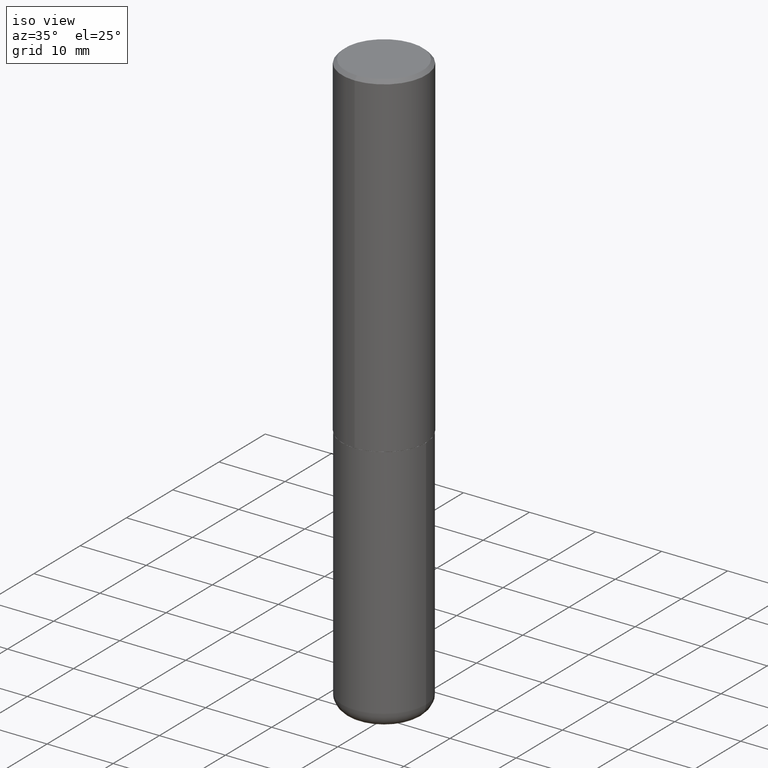
[diagram: clean part render]
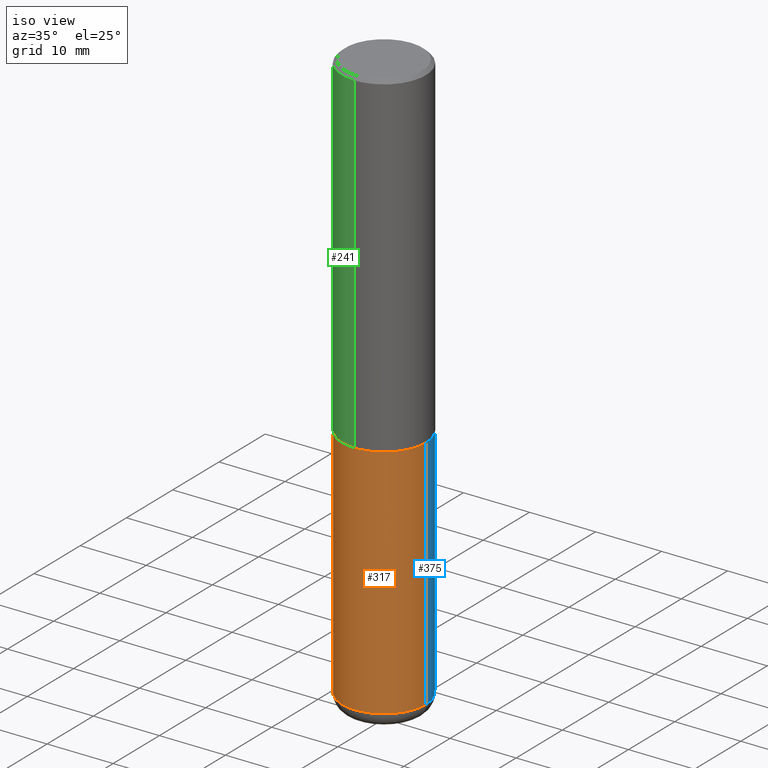
[diagram: same view with three faces highlighted in distinct colors, each labeled with its STEP entity id]
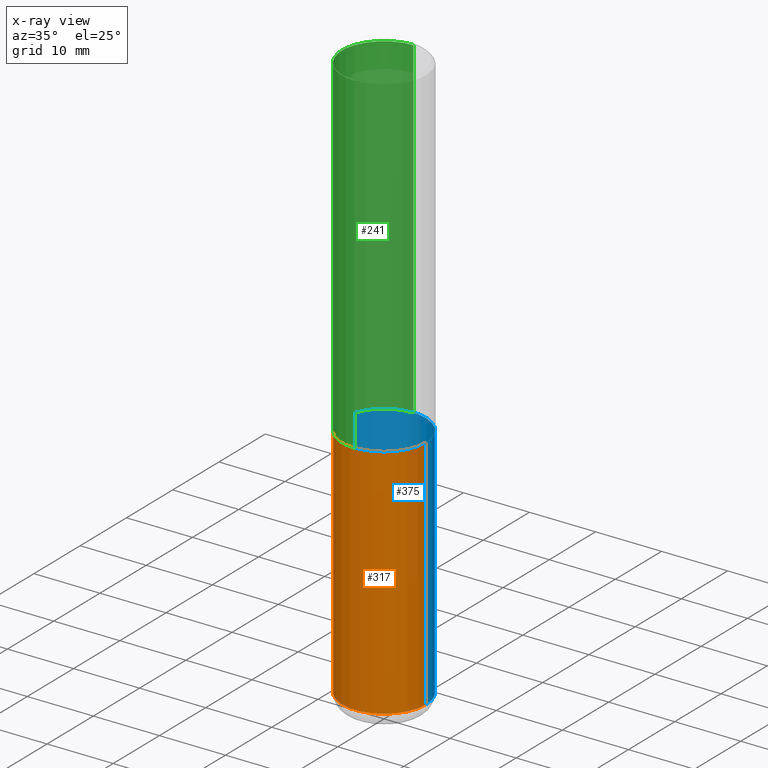
[diagram: x-ray of the same camera — body ghosted, the three highlighted faces saturated]
A machine part, iso view with three faces highlighted in distinct colors.
The next image is the same camera in x-ray (body ghosted, the three faces saturated) — at least one of them is partly hidden behind the body in this view.
Their STEP definitions:

[orange] entity #317 — the highlighted cylindrical surface (partial cylindrical patch) has radius 6.35 mm, axis along (-0, 0, 1).
#36 = CIRCLE ( 'NONE', #304, 0.2500000000000000000 ) ;
#52 = VERTEX_POINT ( 'NONE', #122 ) ;
#53 = VERTEX_POINT ( 'NONE', #409 ) ;
#66 = VERTEX_POINT ( 'NONE', #283 ) ;
#75 = CARTESIAN_POINT ( 'NONE',  ( -0.2500000000000000000, -7.668100182170457762E-15, -1.999999999999999778 ) ) ;
#83 = CIRCLE ( 'NONE', #255, 0.2500000000000000555 ) ;
#87 = CARTESIAN_POINT ( 'NONE',  ( 0.000000000000000000, 0.000000000000000000, 0.000000000000000000 ) ) ;
#99 = VERTEX_POINT ( 'NONE', #75 ) ;
#109 = CARTESIAN_POINT ( 'NONE',  ( 8.339048629091315302E-29, -1.190595136545512608E-14, -3.410000000000000142 ) ) ;
#122 = CARTESIAN_POINT ( 'NONE',  ( 0.2500000000000000000, -8.728703347107857054E-15, -1.999999999999999778 ) ) ;
#137 = LINE ( 'NONE', #270, #217 ) ;
#145 = DIRECTION ( 'NONE',  ( -2.445468806185136597E-29, 3.491481338843145583E-15, 1.000000000000000000 ) ) ;
#164 = DIRECTION ( 'NONE',  ( 1.000000000000000000, -6.982962677686269077E-15, 0.000000000000000000 ) ) ;
#181 = EDGE_CURVE ( 'NONE', #66, #52, #296, .T. ) ;
#196 = DIRECTION ( 'NONE',  ( -2.445468806185136597E-29, 3.491481338843145583E-15, 1.000000000000000000 ) ) ;
#201 = AXIS2_PLACEMENT_3D ( 'NONE', #87, #411, #381 ) ;
#207 = CARTESIAN_POINT ( 'NONE',  ( 4.890937612370272633E-29, -6.982962677686290376E-15, -1.999999999999999778 ) ) ;
#217 = VECTOR ( 'NONE', #303, 39.37007874015748143 ) ;
#255 = AXIS2_PLACEMENT_3D ( 'NONE', #109, #196, #164 ) ;
#257 = EDGE_CURVE ( 'NONE', #53, #66, #83, .T. ) ;
#268 = CARTESIAN_POINT ( 'NONE',  ( 0.2500000000000000000, -1.745740669421566678E-15, 1.219044193948983948E-29 ) ) ;
#270 = CARTESIAN_POINT ( 'NONE',  ( -0.2500000000000000000, 1.776356839400250465E-15, -1.229733772563726445E-29 ) ) ;
#273 = EDGE_CURVE ( 'NONE', #53, #99, #137, .T. ) ;
#283 = CARTESIAN_POINT ( 'NONE',  ( 0.2499999999999998612, -1.365169203487669276E-14, -3.410000000000000142 ) ) ;
#292 = EDGE_CURVE ( 'NONE', #99, #52, #36, .T. ) ;
#296 = LINE ( 'NONE', #268, #374 ) ;
#303 = DIRECTION ( 'NONE',  ( -2.445468806185136877E-29, 3.491481338843145188E-15, 1.000000000000000000 ) ) ;
#304 = AXIS2_PLACEMENT_3D ( 'NONE', #207, #145, #306 ) ;
#305 = ORIENTED_EDGE ( 'NONE', *, *, #292, .F. ) ;
#306 = DIRECTION ( 'NONE',  ( 1.000000000000000000, -6.982962677686266711E-15, 0.000000000000000000 ) ) ;
#311 = FACE_OUTER_BOUND ( 'NONE', #372, .T. ) ;
#317 = ADVANCED_FACE ( 'NONE', ( #311 ), #376, .T. ) ;
#361 = ORIENTED_EDGE ( 'NONE', *, *, #181, .T. ) ;
#372 = EDGE_LOOP ( 'NONE', ( #407, #404, #361, #305 ) ) ;
#374 = VECTOR ( 'NONE', #399, 39.37007874015748143 ) ;
#376 = CYLINDRICAL_SURFACE ( 'NONE', #201, 0.2500000000000000000 ) ;
#381 = DIRECTION ( 'NONE',  ( 1.000000000000000000, -6.982962677686266711E-15, 4.876176775795935793E-29 ) ) ;
#399 = DIRECTION ( 'NONE',  ( -2.445468806185136877E-29, 3.491481338843145188E-15, 1.000000000000000000 ) ) ;
#404 = ORIENTED_EDGE ( 'NONE', *, *, #257, .T. ) ;
#407 = ORIENTED_EDGE ( 'NONE', *, *, #273, .F. ) ;
#409 = CARTESIAN_POINT ( 'NONE',  ( -0.2499999999999998612, -1.012959452605487719E-14, -3.410000000000000142 ) ) ;
#411 = DIRECTION ( 'NONE',  ( -2.445468806185136597E-29, 3.491481338843145583E-15, 1.000000000000000000 ) ) ;

[blue] entity #375 — the highlighted cylindrical surface (partial cylindrical patch) has radius 6.35 mm, axis along (-0, 0, 1).
#16 = ORIENTED_EDGE ( 'NONE', *, *, #253, .T. ) ;
#52 = VERTEX_POINT ( 'NONE', #122 ) ;
#53 = VERTEX_POINT ( 'NONE', #409 ) ;
#62 = ORIENTED_EDGE ( 'NONE', *, *, #155, .F. ) ;
#66 = VERTEX_POINT ( 'NONE', #283 ) ;
#75 = CARTESIAN_POINT ( 'NONE',  ( -0.2500000000000000000, -7.668100182170457762E-15, -1.999999999999999778 ) ) ;
#92 = CARTESIAN_POINT ( 'NONE',  ( 8.339048629091315302E-29, -1.190595136545512608E-14, -3.410000000000000142 ) ) ;
#99 = VERTEX_POINT ( 'NONE', #75 ) ;
#122 = CARTESIAN_POINT ( 'NONE',  ( 0.2500000000000000000, -8.728703347107857054E-15, -1.999999999999999778 ) ) ;
#123 = CYLINDRICAL_SURFACE ( 'NONE', #256, 0.2500000000000000000 ) ;
#125 = DIRECTION ( 'NONE',  ( 1.000000000000000000, -6.982962677686266711E-15, 4.876176775795935793E-29 ) ) ;
#137 = LINE ( 'NONE', #270, #217 ) ;
#155 = EDGE_CURVE ( 'NONE', #52, #99, #242, .T. ) ;
#159 = DIRECTION ( 'NONE',  ( -2.445468806185136597E-29, 3.491481338843145583E-15, 1.000000000000000000 ) ) ;
#181 = EDGE_CURVE ( 'NONE', #66, #52, #296, .T. ) ;
#186 = DIRECTION ( 'NONE',  ( -2.445468806185136597E-29, 3.491481338843145583E-15, 1.000000000000000000 ) ) ;
#202 = AXIS2_PLACEMENT_3D ( 'NONE', #235, #186, #363 ) ;
#217 = VECTOR ( 'NONE', #303, 39.37007874015748143 ) ;
#218 = DIRECTION ( 'NONE',  ( -2.445468806185136597E-29, 3.491481338843145583E-15, 1.000000000000000000 ) ) ;
#229 = FACE_OUTER_BOUND ( 'NONE', #310, .T. ) ;
#235 = CARTESIAN_POINT ( 'NONE',  ( 4.890937612370272633E-29, -6.982962677686290376E-15, -1.999999999999999778 ) ) ;
#242 = CIRCLE ( 'NONE', #202, 0.2500000000000000000 ) ;
#246 = ORIENTED_EDGE ( 'NONE', *, *, #181, .F. ) ;
#247 = ORIENTED_EDGE ( 'NONE', *, *, #273, .T. ) ;
#253 = EDGE_CURVE ( 'NONE', #66, #53, #318, .T. ) ;
#256 = AXIS2_PLACEMENT_3D ( 'NONE', #387, #159, #125 ) ;
#268 = CARTESIAN_POINT ( 'NONE',  ( 0.2500000000000000000, -1.745740669421566678E-15, 1.219044193948983948E-29 ) ) ;
#270 = CARTESIAN_POINT ( 'NONE',  ( -0.2500000000000000000, 1.776356839400250465E-15, -1.229733772563726445E-29 ) ) ;
#273 = EDGE_CURVE ( 'NONE', #53, #99, #137, .T. ) ;
#283 = CARTESIAN_POINT ( 'NONE',  ( 0.2499999999999998612, -1.365169203487669276E-14, -3.410000000000000142 ) ) ;
#296 = LINE ( 'NONE', #268, #374 ) ;
#303 = DIRECTION ( 'NONE',  ( -2.445468806185136877E-29, 3.491481338843145188E-15, 1.000000000000000000 ) ) ;
#310 = EDGE_LOOP ( 'NONE', ( #16, #247, #62, #246 ) ) ;
#318 = CIRCLE ( 'NONE', #355, 0.2500000000000000555 ) ;
#350 = DIRECTION ( 'NONE',  ( 1.000000000000000000, -6.982962677686269077E-15, 0.000000000000000000 ) ) ;
#355 = AXIS2_PLACEMENT_3D ( 'NONE', #92, #218, #350 ) ;
#363 = DIRECTION ( 'NONE',  ( 1.000000000000000000, -6.982962677686266711E-15, 0.000000000000000000 ) ) ;
#374 = VECTOR ( 'NONE', #399, 39.37007874015748143 ) ;
#375 = ADVANCED_FACE ( 'NONE', ( #229 ), #123, .T. ) ;
#387 = CARTESIAN_POINT ( 'NONE',  ( 0.000000000000000000, 0.000000000000000000, 0.000000000000000000 ) ) ;
#399 = DIRECTION ( 'NONE',  ( -2.445468806185136877E-29, 3.491481338843145188E-15, 1.000000000000000000 ) ) ;
#409 = CARTESIAN_POINT ( 'NONE',  ( -0.2499999999999998612, -1.012959452605487719E-14, -3.410000000000000142 ) ) ;

[green] entity #241 — the highlighted cylindrical surface (partial cylindrical patch) has radius 6.35 mm, axis along (-0, 0, 1).
#3 = EDGE_CURVE ( 'NONE', #413, #86, #209, .T. ) ;
#14 = ORIENTED_EDGE ( 'NONE', *, *, #88, .T. ) ;
#22 = CYLINDRICAL_SURFACE ( 'NONE', #278, 0.2500000000000001110 ) ;
#24 = CARTESIAN_POINT ( 'NONE',  ( 0.000000000000000000, 0.000000000000000000, 0.000000000000000000 ) ) ;
#30 = DIRECTION ( 'NONE',  ( -2.445737183286911680E-29, 3.491097007558327602E-15, 1.000000000000000000 ) ) ;
#46 = EDGE_LOOP ( 'NONE', ( #245, #14, #385, #344 ) ) ;
#50 = CIRCLE ( 'NONE', #185, 0.2500000000000002776 ) ;
#60 = CARTESIAN_POINT ( 'NONE',  ( -1.715124499442882299E-15, -0.2500000000000000555, -0.01999999999999918510 ) ) ;
#84 = VERTEX_POINT ( 'NONE', #353 ) ;
#86 = VERTEX_POINT ( 'NONE', #60 ) ;
#88 = EDGE_CURVE ( 'NONE', #84, #94, #50, .T. ) ;
#89 = FACE_OUTER_BOUND ( 'NONE', #46, .T. ) ;
#93 = EDGE_CURVE ( 'NONE', #84, #413, #390, .T. ) ;
#94 = VERTEX_POINT ( 'NONE', #260 ) ;
#95 = CARTESIAN_POINT ( 'NONE',  ( 1.745740669421566875E-15, 0.2499999999999999167, -0.02000000000000092676 ) ) ;
#97 = CARTESIAN_POINT ( 'NONE',  ( 1.776356839400251254E-15, 0.2500000000000001110, -8.727742518895823935E-16 ) ) ;
#120 = DIRECTION ( 'NONE',  ( -6.982962677686266711E-15, -1.000000000000000000, 3.491097007558327996E-15 ) ) ;
#124 = DIRECTION ( 'NONE',  ( -6.982962677686265922E-15, -1.000000000000000000, 3.483106191921935554E-15 ) ) ;
#185 = AXIS2_PLACEMENT_3D ( 'NONE', #320, #30, #415 ) ;
#189 = DIRECTION ( 'NONE',  ( -2.445737183286911680E-29, 3.491097007558327602E-15, 1.000000000000000000 ) ) ;
#209 = CIRCLE ( 'NONE', #232, 0.2500000000000000000 ) ;
#226 = EDGE_CURVE ( 'NONE', #94, #86, #408, .T. ) ;
#232 = AXIS2_PLACEMENT_3D ( 'NONE', #391, #322, #124 ) ;
#241 = ADVANCED_FACE ( 'NONE', ( #89 ), #22, .T. ) ;
#245 = ORIENTED_EDGE ( 'NONE', *, *, #93, .F. ) ;
#260 = CARTESIAN_POINT ( 'NONE',  ( -1.745740669421519543E-15, -0.2500000000000072164, -1.998999999999998778 ) ) ;
#277 = VECTOR ( 'NONE', #189, 39.37007874015748143 ) ;
#278 = AXIS2_PLACEMENT_3D ( 'NONE', #24, #343, #120 ) ;
#320 = CARTESIAN_POINT ( 'NONE',  ( 4.889028629390535480E-29, -6.978702918109095527E-15, -1.998999999999999666 ) ) ;
#322 = DIRECTION ( 'NONE',  ( -2.445737183286911680E-29, 3.491097007558327602E-15, 1.000000000000000000 ) ) ;
#343 = DIRECTION ( 'NONE',  ( -2.445737183286911680E-29, 3.491097007558327602E-15, 1.000000000000000000 ) ) ;
#344 = ORIENTED_EDGE ( 'NONE', *, *, #3, .F. ) ;
#347 = VECTOR ( 'NONE', #412, 39.37007874015748143 ) ;
#348 = CARTESIAN_POINT ( 'NONE',  ( -1.745740669421567467E-15, -0.2500000000000001110, 8.727742518895823935E-16 ) ) ;
#353 = CARTESIAN_POINT ( 'NONE',  ( 1.776356839400276103E-15, 0.2499999999999933109, -1.999000000000000554 ) ) ;
#385 = ORIENTED_EDGE ( 'NONE', *, *, #226, .T. ) ;
#390 = LINE ( 'NONE', #97, #277 ) ;
#391 = CARTESIAN_POINT ( 'NONE',  ( 4.891474366573836672E-31, -6.982194015116674235E-17, -0.02000000000000005593 ) ) ;
#408 = LINE ( 'NONE', #348, #347 ) ;
#412 = DIRECTION ( 'NONE',  ( -2.445737183286911680E-29, 3.491097007558327602E-15, 1.000000000000000000 ) ) ;
#413 = VERTEX_POINT ( 'NONE', #95 ) ;
#415 = DIRECTION ( 'NONE',  ( -6.982962677686265922E-15, -1.000000000000000000, 3.278217592397112312E-15 ) ) ;